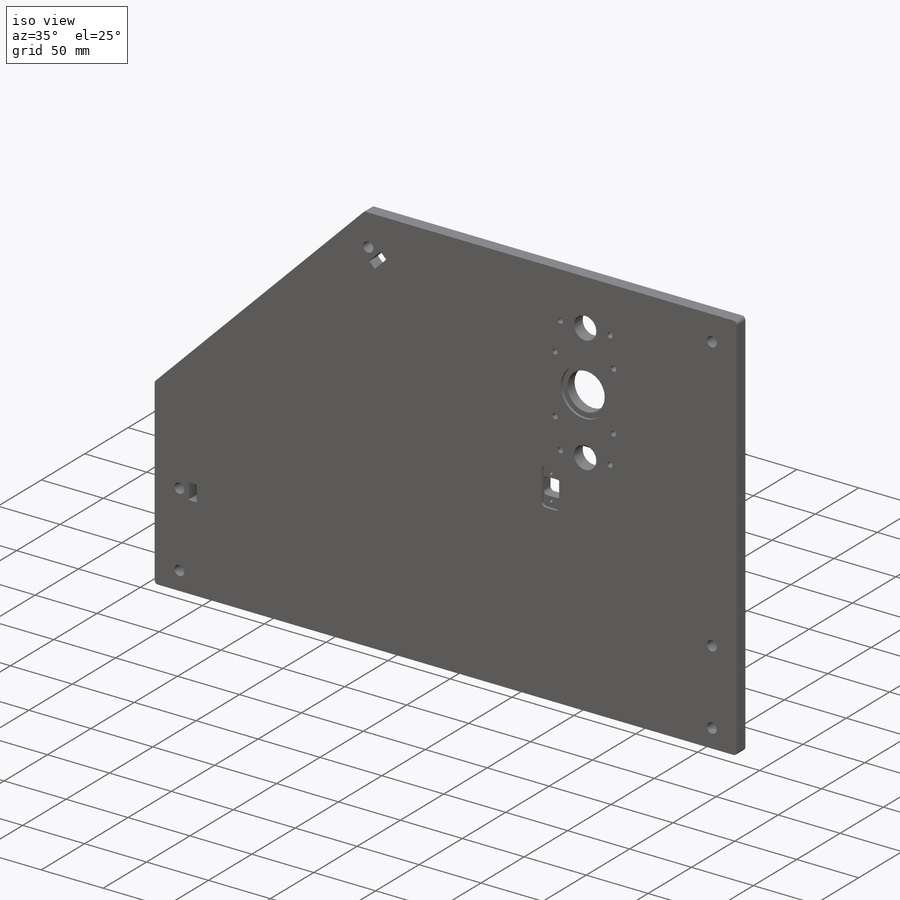
[diagram: iso view]
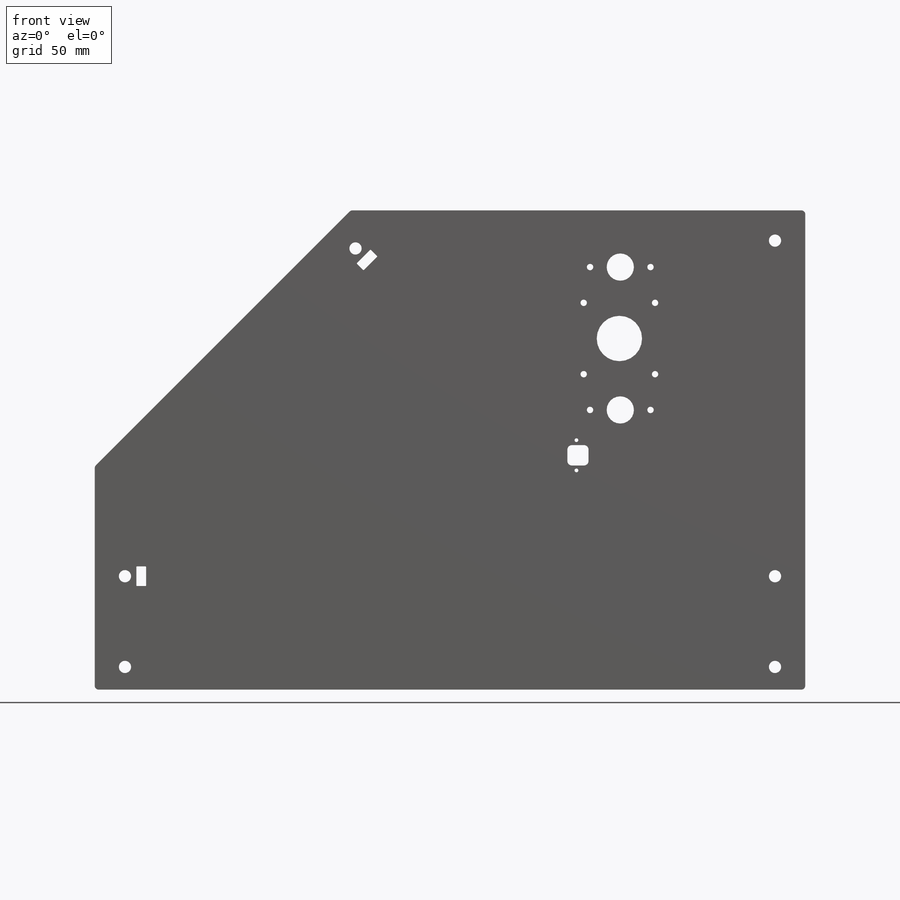
[diagram: front view]
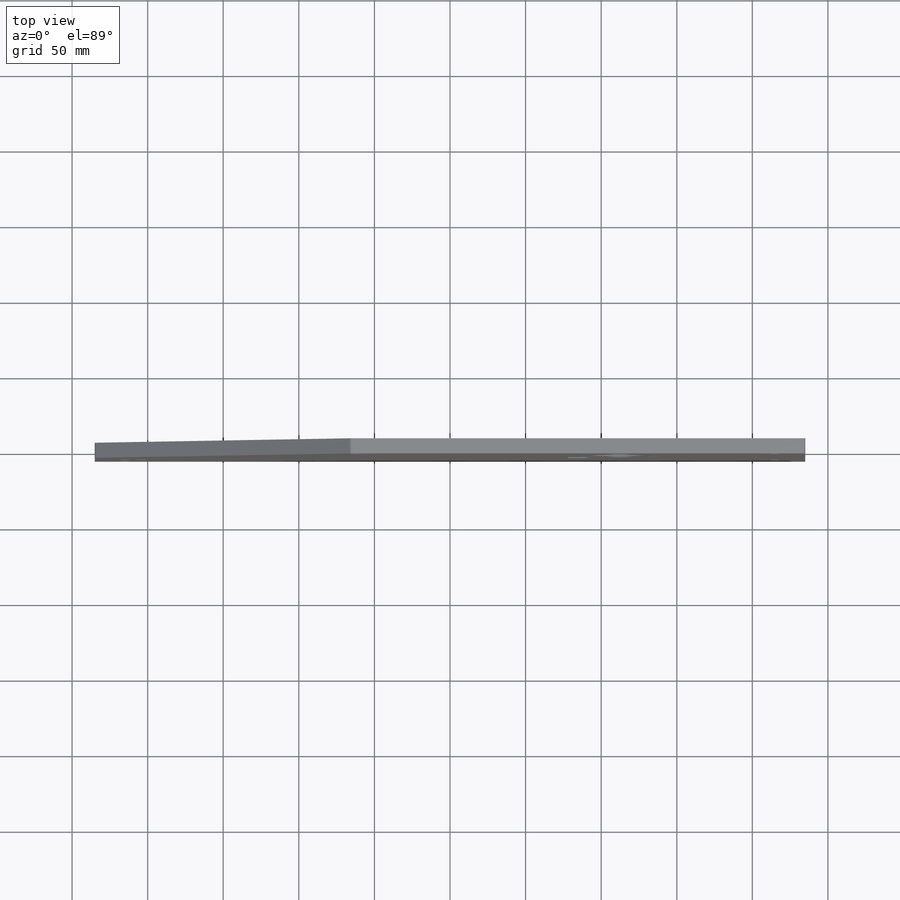
[diagram: top view]
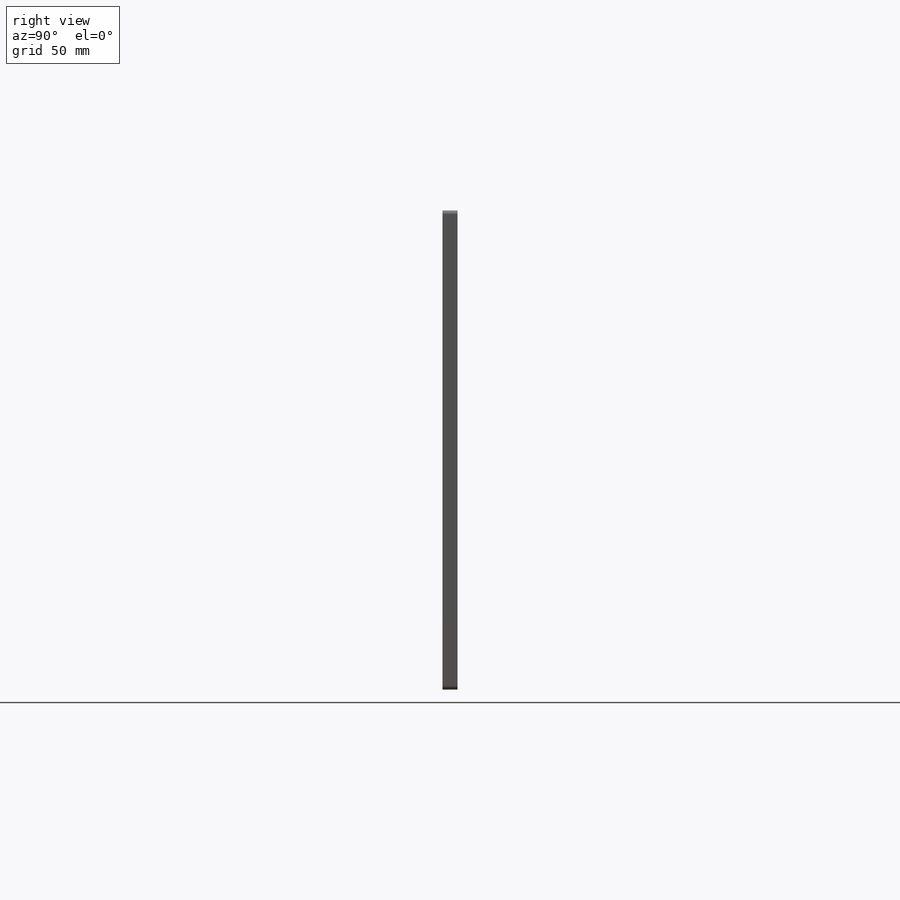
[diagram: right view]
SOLIDWORKS PART (.sldprt)
format: sldprt  version: not decoded by parser v0  size: 1,860,096 bytes
history: native  units: mm
features: sketch x20, thread x14, cut_extrude x11, hole x4, fillet x2, material x1, extrude x1 (+12 scaffold rows collapsed)
feature tree (65):
  scaffold x12  (default folders/planes/origin — collapsed)
  material  "6061 Alloy"
  sketch  "Sketch2"  dims[D1=470.0mm D2=317.0mm]
  extrude  "Boss-Extrude1"  Depth=10mm
  sketch  "Sketch3"  dims[c1.D5=8.1mm c1.D6=8.1mm c1.D7=8.1mm c1.D8=8.1mm c1.D10=8.1mm c1.D11=8.1mm c1.D12=8.1mm c1.D13=8.1mm c1.D1=20.0mm c1.D2=15.0mm c1.D3=60.0mm c1.D4=20.0mm c1.D9=20.16mm c2.D12=30.0mm c2.D13=60.0mm c2.D14=90.0mm c2.D15=120.0mm c2.D16=60.0mm c2.D11=172.5mm c2.D9=25.16mm c3.D13=20.0mm]
  cut_extrude  "Cut-Extrude1"  Depth=10mm
  sketch  "Sketch4"  dims[D4=18.0mm D5=18.0mm D8=4.2mm D9=4.2mm D12=4.2mm D13=4.2mm D1=185.0mm D2=94.5mm D3=347.65mm D6=20.0mm D7=20.0mm D10=20.0mm D11=20.0mm]
  cut_extrude  "Cut-Extrude2"  [1 undecoded]
  hole  "M5x0.8 Tapped Hole1"  Diameter=4.2mm Depth=10mm
  sketch  "Sketch14"  dims[c1.D2=18.0mm c1.D3=18.0mm c1.D1=20.0mm c2.D2=20.0mm c2.D3=20.0mm c2.D4=20.0mm]
  sketch  "Sketch13"  dims[hole-wizard template sketch: 60 standard entries collapsed; hole parameters kept: c18.Thru Tap Drill Depth=10.0mm]
  thread  "Hole Thread1"  Diameter=5mm  [1 undecoded]
  thread  "Hole Thread2"  Diameter=5mm  [1 undecoded]
  thread  "Hole Thread3"  Diameter=5mm  [1 undecoded]
  thread  "Hole Thread4"  Diameter=5mm  [1 undecoded]
  sketch  "Sketch7"  dims[D1=38.2mm D2=0.6mm D3=47.25mm]
  cut_extrude  "Cut-Extrude5"  Depth=2mm
  hole  "M5x0.8 Tapped Hole2"  Diameter=4.2mm Depth=10mm
  sketch  "Sketch18"  dims[D1=47.2mm D2=47.2mm D3=23.6mm D4=23.6mm]
  sketch  "Sketch17"  dims[hole-wizard template sketch: 60 standard entries collapsed; hole parameters kept: c18.Thru Tap Drill Depth=10.0mm]
  thread  "Hole Thread9"  Diameter=5mm  [1 undecoded]
  thread  "Hole Thread10"  Diameter=5mm  [1 undecoded]
  thread  "Hole Thread11"  Diameter=5mm  [1 undecoded]
  thread  "Hole Thread12"  Diameter=5mm  [1 undecoded]
  sketch  "Sketch11"  dims[D1=13.0mm]
  cut_extrude  "Cut-Extrude9"  [1 undecoded]
  hole  "M3x0.5 Tapped Hole1"  Diameter=2.5mm Depth=10mm
  sketch  "Sketch16"  dims[c1.D3=10.0mm c1.D4=10.0mm c1.D1=22.0mm c1.D2=22.0mm c2.D3=11.0mm c2.D4=11.0mm]
  sketch  "Sketch15"  dims[hole-wizard template sketch: 60 standard entries collapsed; hole parameters kept: c18.Thru Tap Drill Depth=10.0mm]
  thread  "Hole Thread5"  Diameter=3mm  [1 undecoded]
  thread  "Hole Thread6"  Diameter=3mm  [1 undecoded]
  thread  "Hole Thread7"  Diameter=3mm  [1 undecoded]
  thread  "Hole Thread8"  Diameter=3mm  [1 undecoded]
  sketch  "Sketch19"  dims[D1=30.0mm]
  cut_extrude  "Cut-Extrude10"  [1 undecoded]
  sketch  "Sketch20"  dims[c1.D4=18.0mm c1.D1=30.0mm c1.D2=15.0mm c1.D3=23.0mm c2.D4=20.0mm c2.D1=14.0mm c2.D2=30.0mm c2.D3=28.0mm c3.D4=30.0mm]
  cut_extrude  "Cut-Extrude11"  Depth=2mm
  hole  "M3x0.5 Tapped Hole2"  Diameter=2.5mm Depth=8mm
  sketch  "Sketch25"  dims[D1=20.0mm D2=1.0mm D3=10.0mm]
  sketch  "Sketch24"  dims[hole-wizard template sketch: 60 standard entries collapsed; hole parameters kept: c18.Thru Tap Drill Depth=8.0mm]
  thread  "Hole Thread13"  Diameter=3mm  [1 undecoded]
  thread  "Hole Thread14"  Diameter=3mm  [1 undecoded]
  sketch  "Sketch23"  dims[D1=13.5mm]
  cut_extrude  "Cut-Extrude13"  [1 undecoded]
  sketch  "Sketch26"  dims[c1.D1=8.1mm c1.D5=8.1mm c2.D1=15.0mm c2.D2=~83.139957mm c3.D2=90.0deg c3.D3=~28.323822mm c4.D3=90.0deg c5.D3=~40.055933mm c5.D4=~119.424424mm c5.D5=20.0mm c5.D1=~358.778791mm c6.D1=45.0deg]
  cut_extrude  "Cut-Extrude14"  [1 undecoded]
  fillet  "Fillet1"  Radius=3mm
  fillet  "Fillet2"  Radius=2.5mm
  sketch  "Sketch27"  dims[D1=8.1mm]
  cut_extrude  "Cut-Extrude15"  [1 undecoded]
  sketch  "Sketch28"  dims[c1.D5=8.1mm c1.D6=0.5mm c1.D1=13.0mm c1.D2=6.5mm c2.D1=~237.462385mm c3.D1=90.0deg c3.D2=6.5mm c3.D3=~25.871409mm c4.D3=~111.337248deg c5.D3=13.0mm c5.D4=13.0mm c6.D4=90.0deg c6.D5=7.5mm]
  cut_extrude  "Cut-Extrude16"  [1 undecoded]
  sketch  "Sketch29"  dims[D4=0.5mm D1=6.5mm D2=13.0mm D3=7.5mm]
  cut_extrude  "Cut-Extrude17"  [1 undecoded]
decode coverage: 44 of 52 modeling features carry decoded parameters
note: ~ marks probable driven/reference dimensions
note: 22 parameter values undecoded
summary: no parameter record found for 8 features; Diameter pulled from absorbed wizard sketch
note: suppression state not decoded; provenance and decode notes live in map.json
